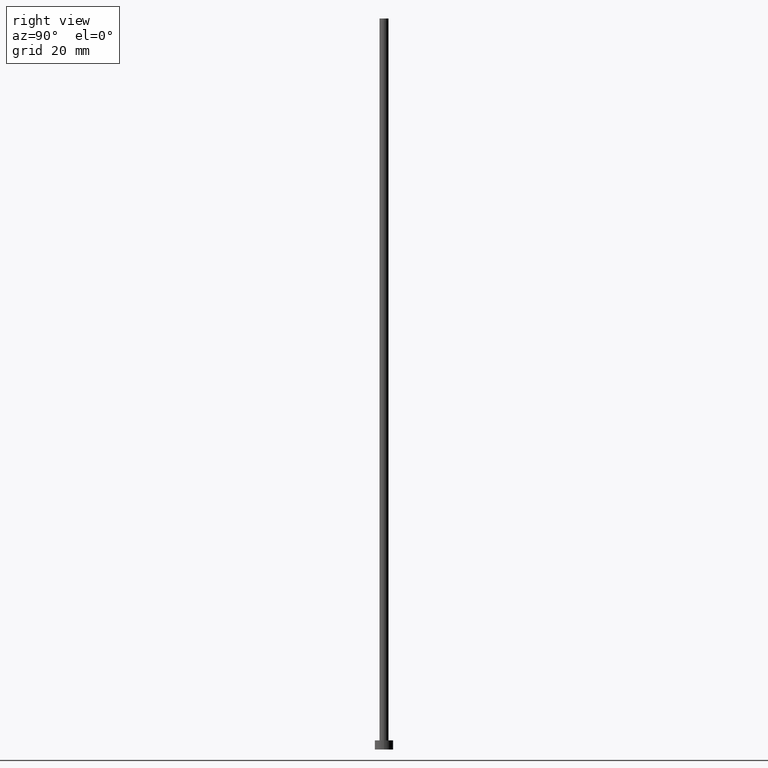
[diagram: clean part render]
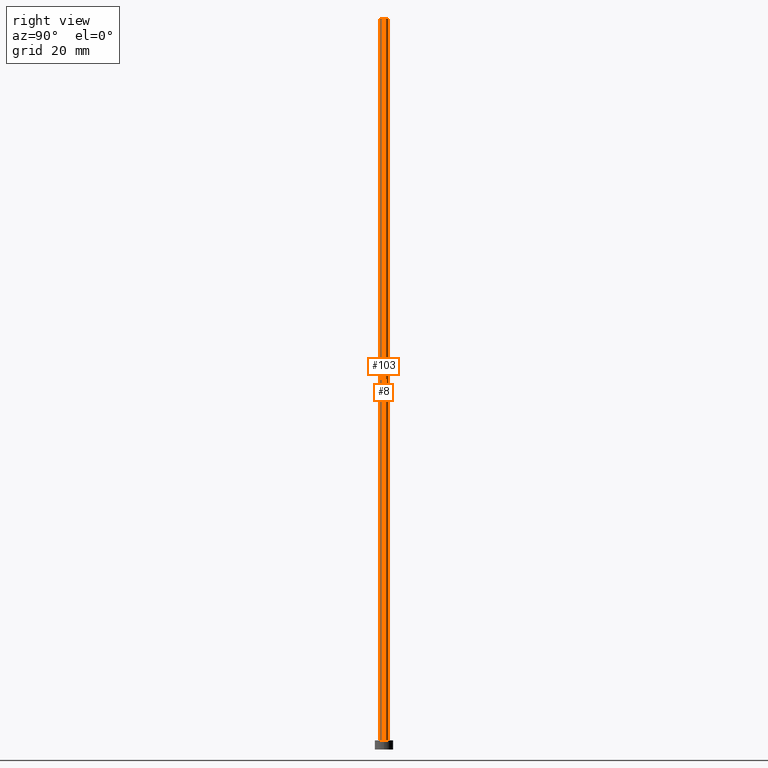
[diagram: same view with one multi-face feature highlighted, each face labeled with its STEP entity id]
A machine part, right view. The highlighted faces form ONE feature: a constant-radius fillet chain: 2 tangent blend faces with common blend radius 1 mm. The faces share edges in the B-rep.
Their STEP definitions:
[1] entity #8 (Cylinder):
#1 = AXIS2_PLACEMENT_3D ( 'NONE', #243, #194, #80 ) ;
#2 = EDGE_CURVE ( 'NONE', #247, #150, #65, .T. ) ;
#3 = CARTESIAN_POINT ( 'NONE',  ( -1.000000000000000000, 0.000000000000000000, 160.0000000000000000 ) ) ;
#8 = ADVANCED_FACE ( 'NONE', ( #12 ), #117, .T. ) ;
#12 = FACE_OUTER_BOUND ( 'NONE', #144, .T. ) ;
#29 = VECTOR ( 'NONE', #188, 1000.000000000000000 ) ;
#43 = ORIENTED_EDGE ( 'NONE', *, *, #2, .T. ) ;
#51 = DIRECTION ( 'NONE',  ( 0.000000000000000000, 0.000000000000000000, 1.000000000000000000 ) ) ;
#57 = EDGE_CURVE ( 'NONE', #106, #139, #93, .T. ) ;
#59 = ORIENTED_EDGE ( 'NONE', *, *, #123, .T. ) ;
#65 = CIRCLE ( 'NONE', #170, 1.000000000000000000 ) ;
#80 = DIRECTION ( 'NONE',  ( -1.000000000000000000, 0.000000000000000000, 0.000000000000000000 ) ) ;
#86 = DIRECTION ( 'NONE',  ( -0.000000000000000000, -0.000000000000000000, -1.000000000000000000 ) ) ;
#93 = CIRCLE ( 'NONE', #163, 1.000000000000000000 ) ;
#101 = EDGE_CURVE ( 'NONE', #139, #150, #149, .T. ) ;
#105 = DIRECTION ( 'NONE',  ( 0.000000000000000000, 0.000000000000000000, 1.000000000000000000 ) ) ;
#106 = VERTEX_POINT ( 'NONE', #220 ) ;
#111 = CARTESIAN_POINT ( 'NONE',  ( 1.000000000000000000, 1.224646799147353207E-16, 160.0000000000000000 ) ) ;
#115 = VECTOR ( 'NONE', #86, 1000.000000000000000 ) ;
#117 = CYLINDRICAL_SURFACE ( 'NONE', #1, 1.000000000000000000 ) ;
#123 = EDGE_CURVE ( 'NONE', #106, #247, #145, .T. ) ;
#124 = CARTESIAN_POINT ( 'NONE',  ( -1.000000000000000000, 0.000000000000000000, 160.0000000000000000 ) ) ;
#132 = DIRECTION ( 'NONE',  ( 1.000000000000000000, 0.000000000000000000, 0.000000000000000000 ) ) ;
#139 = VERTEX_POINT ( 'NONE', #3 ) ;
#144 = EDGE_LOOP ( 'NONE', ( #216, #59, #43, #177 ) ) ;
#145 = LINE ( 'NONE', #111, #29 ) ;
#149 = LINE ( 'NONE', #124, #115 ) ;
#150 = VERTEX_POINT ( 'NONE', #222 ) ;
#154 = CARTESIAN_POINT ( 'NONE',  ( 0.000000000000000000, 0.000000000000000000, 2.000000000000000000 ) ) ;
#163 = AXIS2_PLACEMENT_3D ( 'NONE', #211, #105, #250 ) ;
#170 = AXIS2_PLACEMENT_3D ( 'NONE', #154, #51, #132 ) ;
#177 = ORIENTED_EDGE ( 'NONE', *, *, #101, .F. ) ;
#188 = DIRECTION ( 'NONE',  ( -0.000000000000000000, -0.000000000000000000, -1.000000000000000000 ) ) ;
#194 = DIRECTION ( 'NONE',  ( -0.000000000000000000, -0.000000000000000000, -1.000000000000000000 ) ) ;
#204 = CARTESIAN_POINT ( 'NONE',  ( 1.000000000000000000, 1.224646799147353207E-16, 2.000000000000000000 ) ) ;
#211 = CARTESIAN_POINT ( 'NONE',  ( 0.000000000000000000, 0.000000000000000000, 160.0000000000000000 ) ) ;
#216 = ORIENTED_EDGE ( 'NONE', *, *, #57, .F. ) ;
#220 = CARTESIAN_POINT ( 'NONE',  ( 1.000000000000000000, 1.224646799147353207E-16, 160.0000000000000000 ) ) ;
#222 = CARTESIAN_POINT ( 'NONE',  ( -1.000000000000000000, 0.000000000000000000, 2.000000000000000000 ) ) ;
#243 = CARTESIAN_POINT ( 'NONE',  ( 0.000000000000000000, 0.000000000000000000, 160.0000000000000000 ) ) ;
#247 = VERTEX_POINT ( 'NONE', #204 ) ;
#250 = DIRECTION ( 'NONE',  ( 1.000000000000000000, 0.000000000000000000, 0.000000000000000000 ) ) ;
[2] entity #103 (Cylinder):
#3 = CARTESIAN_POINT ( 'NONE',  ( -1.000000000000000000, 0.000000000000000000, 160.0000000000000000 ) ) ;
#6 = DIRECTION ( 'NONE',  ( -1.000000000000000000, 0.000000000000000000, 0.000000000000000000 ) ) ;
#10 = EDGE_CURVE ( 'NONE', #150, #247, #121, .T. ) ;
#15 = ORIENTED_EDGE ( 'NONE', *, *, #101, .T. ) ;
#24 = CARTESIAN_POINT ( 'NONE',  ( 0.000000000000000000, 0.000000000000000000, 160.0000000000000000 ) ) ;
#27 = FACE_OUTER_BOUND ( 'NONE', #210, .T. ) ;
#29 = VECTOR ( 'NONE', #188, 1000.000000000000000 ) ;
#71 = CYLINDRICAL_SURFACE ( 'NONE', #189, 1.000000000000000000 ) ;
#86 = DIRECTION ( 'NONE',  ( -0.000000000000000000, -0.000000000000000000, -1.000000000000000000 ) ) ;
#96 = ORIENTED_EDGE ( 'NONE', *, *, #123, .F. ) ;
#101 = EDGE_CURVE ( 'NONE', #139, #150, #149, .T. ) ;
#103 = ADVANCED_FACE ( 'NONE', ( #27 ), #71, .T. ) ;
#106 = VERTEX_POINT ( 'NONE', #220 ) ;
#111 = CARTESIAN_POINT ( 'NONE',  ( 1.000000000000000000, 1.224646799147353207E-16, 160.0000000000000000 ) ) ;
#115 = VECTOR ( 'NONE', #86, 1000.000000000000000 ) ;
#121 = CIRCLE ( 'NONE', #187, 1.000000000000000000 ) ;
#123 = EDGE_CURVE ( 'NONE', #106, #247, #145, .T. ) ;
#124 = CARTESIAN_POINT ( 'NONE',  ( -1.000000000000000000, 0.000000000000000000, 160.0000000000000000 ) ) ;
#126 = DIRECTION ( 'NONE',  ( 0.000000000000000000, 0.000000000000000000, 1.000000000000000000 ) ) ;
#139 = VERTEX_POINT ( 'NONE', #3 ) ;
#141 = CARTESIAN_POINT ( 'NONE',  ( 0.000000000000000000, 0.000000000000000000, 2.000000000000000000 ) ) ;
#143 = AXIS2_PLACEMENT_3D ( 'NONE', #24, #126, #255 ) ;
#145 = LINE ( 'NONE', #111, #29 ) ;
#149 = LINE ( 'NONE', #124, #115 ) ;
#150 = VERTEX_POINT ( 'NONE', #222 ) ;
#187 = AXIS2_PLACEMENT_3D ( 'NONE', #141, #217, #213 ) ;
#188 = DIRECTION ( 'NONE',  ( -0.000000000000000000, -0.000000000000000000, -1.000000000000000000 ) ) ;
#189 = AXIS2_PLACEMENT_3D ( 'NONE', #254, #202, #6 ) ;
#202 = DIRECTION ( 'NONE',  ( -0.000000000000000000, -0.000000000000000000, -1.000000000000000000 ) ) ;
#204 = CARTESIAN_POINT ( 'NONE',  ( 1.000000000000000000, 1.224646799147353207E-16, 2.000000000000000000 ) ) ;
#210 = EDGE_LOOP ( 'NONE', ( #96, #240, #15, #221 ) ) ;
#213 = DIRECTION ( 'NONE',  ( 1.000000000000000000, 0.000000000000000000, 0.000000000000000000 ) ) ;
#215 = CIRCLE ( 'NONE', #143, 1.000000000000000000 ) ;
#217 = DIRECTION ( 'NONE',  ( 0.000000000000000000, 0.000000000000000000, 1.000000000000000000 ) ) ;
#220 = CARTESIAN_POINT ( 'NONE',  ( 1.000000000000000000, 1.224646799147353207E-16, 160.0000000000000000 ) ) ;
#221 = ORIENTED_EDGE ( 'NONE', *, *, #10, .T. ) ;
#222 = CARTESIAN_POINT ( 'NONE',  ( -1.000000000000000000, 0.000000000000000000, 2.000000000000000000 ) ) ;
#240 = ORIENTED_EDGE ( 'NONE', *, *, #251, .F. ) ;
#247 = VERTEX_POINT ( 'NONE', #204 ) ;
#251 = EDGE_CURVE ( 'NONE', #139, #106, #215, .T. ) ;
#254 = CARTESIAN_POINT ( 'NONE',  ( 0.000000000000000000, 0.000000000000000000, 160.0000000000000000 ) ) ;
#255 = DIRECTION ( 'NONE',  ( 1.000000000000000000, 0.000000000000000000, 0.000000000000000000 ) ) ;